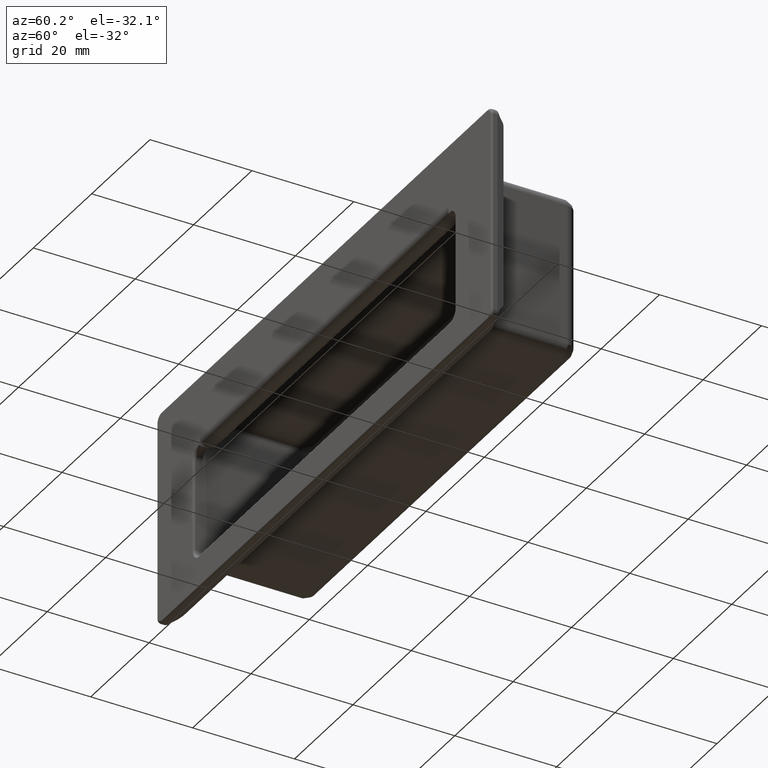
[diagram: clean part render]
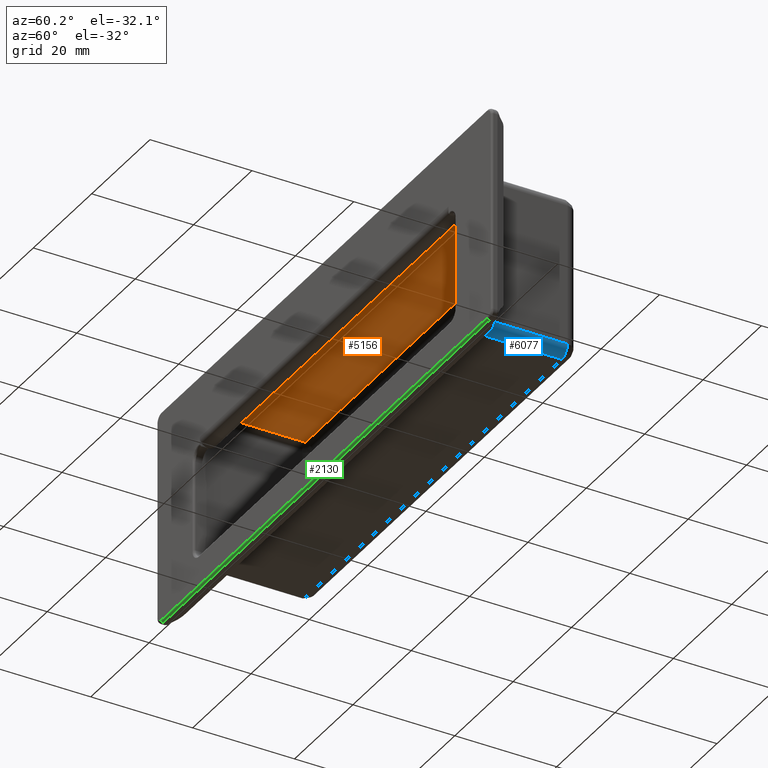
[diagram: same view with three faces highlighted in distinct colors, each labeled with its STEP entity id]
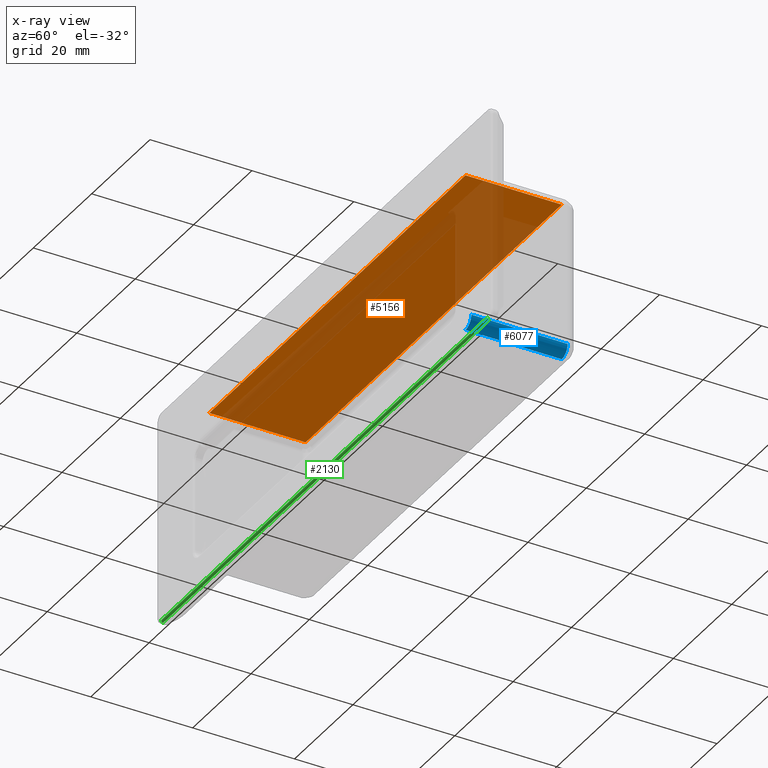
[diagram: x-ray of the same camera — body ghosted, the three highlighted faces saturated]
A machine part, auxiliary view with three faces highlighted in distinct colors.
The next image is the same camera in x-ray (body ghosted, the three faces saturated) — at least one of them is partly hidden behind the body in this view.
Their STEP definitions:

[orange] entity #5156 — the highlighted face is a freeform B-spline surface patch.
#4767=CARTESIAN_POINT('',(43.899999999999999,21.500000000000000,15.199999999999999));
#4768=VERTEX_POINT('',#4767);
#4870=CARTESIAN_POINT('',(43.899999999999999,2.600000000000035,15.199999999999999));
#4871=VERTEX_POINT('',#4870);
#4883=CARTESIAN_POINT('',(43.899999999999999,21.500000000000000,15.199999999999999));
#4884=CARTESIAN_POINT('',(43.899999999999999,2.600000000000035,15.199999999999999));
#4885=QUASI_UNIFORM_CURVE('',1,(#4883,#4884),.UNSPECIFIED.,.F.,.U.);
#4886=EDGE_CURVE('',#4768,#4871,#4885,.T.);
#4906=CARTESIAN_POINT('',(-43.899999999999999,21.500000000000000,15.199999999999999));
#4907=VERTEX_POINT('',#4906);
#4921=CARTESIAN_POINT('',(-43.899999999999999,21.500000000000000,15.199999999999999));
#4922=CARTESIAN_POINT('',(43.899999999999999,21.500000000000000,15.199999999999999));
#4923=QUASI_UNIFORM_CURVE('',1,(#4921,#4922),.UNSPECIFIED.,.F.,.U.);
#4924=EDGE_CURVE('',#4907,#4768,#4923,.T.);
#5064=CARTESIAN_POINT('',(-43.899999999999999,2.600000000000035,15.199999999999999));
#5065=VERTEX_POINT('',#5064);
#5066=CARTESIAN_POINT('',(-43.899999999999999,2.600000000000035,15.199999999999999));
#5067=CARTESIAN_POINT('',(-43.899999999999999,21.500000000000000,15.199999999999999));
#5068=QUASI_UNIFORM_CURVE('',1,(#5066,#5067),.UNSPECIFIED.,.F.,.U.);
#5069=EDGE_CURVE('',#5065,#4907,#5068,.T.);
#5141=CARTESIAN_POINT('',(48.285609829826562,1.655945036631903,15.199999999999999));
#5142=CARTESIAN_POINT('',(-48.285612184806077,1.655945036631903,15.199999999999999));
#5143=CARTESIAN_POINT('',(48.285609829826562,22.444055470305631,15.199999999999999));
#5144=CARTESIAN_POINT('',(-48.285612184806077,22.444055470305631,15.199999999999999));
#5145=B_SPLINE_SURFACE_WITH_KNOTS('',1,1,((#5141,#5143),(#5142,#5144)),.UNSPECIFIED.,.F.,.F.,.U.,(2,2),(2,2),(0.0,96.571222014632639),(0.0,20.788110433673729),.UNSPECIFIED.);
#5146=ORIENTED_EDGE('',*,*,#4886,.T.);
#5147=CARTESIAN_POINT('',(43.899999999999999,2.600000000000035,15.199999999999999));
#5148=CARTESIAN_POINT('',(-43.899999999999999,2.600000000000035,15.199999999999999));
#5149=QUASI_UNIFORM_CURVE('',1,(#5147,#5148),.UNSPECIFIED.,.F.,.U.);
#5150=EDGE_CURVE('',#4871,#5065,#5149,.T.);
#5151=ORIENTED_EDGE('',*,*,#5150,.T.);
#5152=ORIENTED_EDGE('',*,*,#5069,.T.);
#5153=ORIENTED_EDGE('',*,*,#4924,.T.);
#5154=EDGE_LOOP('',(#5146,#5151,#5152,#5153));
#5155=FACE_OUTER_BOUND('',#5154,.T.);
#5156=ADVANCED_FACE('',(#5155),#5145,.T.);

[blue] entity #6077 — the highlighted face is a freeform B-spline surface patch.
#5866=CARTESIAN_POINT('',(45.900000000000013,21.500000000000000,-13.900000000000199));
#5867=VERTEX_POINT('',#5866);
#5925=CARTESIAN_POINT('',(43.899999999999999,21.500000000000000,-15.900000000000000));
#5926=VERTEX_POINT('',#5925);
#6020=CARTESIAN_POINT('',(45.900000000000013,21.500000000000000,-13.900000000000199));
#6021=CARTESIAN_POINT('',(45.900005824462433,21.500000000000028,-14.030896201154960));
#6022=CARTESIAN_POINT('',(45.867801035606171,21.499999999999961,-14.358151051458410));
#6023=CARTESIAN_POINT('',(45.672948776878542,21.500000000000021,-14.903319300400881));
#6024=CARTESIAN_POINT('',(45.267382281176133,21.500000000000099,-15.409985743078350));
#6025=CARTESIAN_POINT('',(44.652435070400351,21.499999999999861,-15.799324634977051));
#6026=CARTESIAN_POINT('',(44.178218193051698,21.500000000000089,-15.900362043365220));
#6027=CARTESIAN_POINT('',(43.899999999999999,21.500000000000000,-15.900000000000000));
#6028=B_SPLINE_CURVE_WITH_KNOTS('',3,(#6020,#6021,#6022,#6023,#6024,#6025,#6026,#6027),.UNSPECIFIED.,.F.,.U.,(4,1,1,1,1,4),(0.000000245825137,0.392707809302964,0.981776154988288,1.718067132761556,2.307162978441625,3.141671488692327),.UNSPECIFIED.);
#6029=EDGE_CURVE('',#5867,#5926,#6028,.T.);
#6035=CARTESIAN_POINT('',(45.898096443163723,21.972500000000000,-13.812761225269529));
#6036=CARTESIAN_POINT('',(45.898096443163723,2.115687500000000,-13.812761225269529));
#6037=CARTESIAN_POINT('',(45.995868981871979,21.972499999999993,-16.052120528918270));
#6038=CARTESIAN_POINT('',(45.995868981871979,2.115687499999999,-16.052120528918270));
#6039=CARTESIAN_POINT('',(43.759883815912950,21.972500000000000,-15.895085826464033));
#6040=CARTESIAN_POINT('',(43.759883815912950,2.115687500000000,-15.895085826464033));
#6048=(BOUNDED_SURFACE()B_SPLINE_SURFACE(1,2,((#6035,#6037,#6039),(#6036,#6038,#6040)),.UNSPECIFIED.,.F.,.F.,.U.)B_SPLINE_SURFACE_WITH_KNOTS((2,2),(3,3),(0.0,19.856812500000000),(0.0,3.583485079683969),.UNSPECIFIED.)GEOMETRIC_REPRESENTATION_ITEM()RATIONAL_B_SPLINE_SURFACE(((1.0,0.664513898535122,0.996233561259061),(1.0,0.664513898535122,0.996233561259061)))REPRESENTATION_ITEM('')SURFACE());
#6049=CARTESIAN_POINT('',(45.900000000000013,2.600000000000000,-13.900000000000199));
#6050=VERTEX_POINT('',#6049);
#6051=CARTESIAN_POINT('',(45.900000000000013,2.600000000000000,-13.900000000000199));
#6052=CARTESIAN_POINT('',(45.900000000000013,21.500000000000000,-13.900000000000199));
#6053=QUASI_UNIFORM_CURVE('',1,(#6051,#6052),.UNSPECIFIED.,.F.,.U.);
#6054=EDGE_CURVE('',#6050,#5867,#6053,.T.);
#6055=ORIENTED_EDGE('',*,*,#6054,.F.);
#6056=CARTESIAN_POINT('',(43.899999999999999,2.600000000000000,-15.900000000000000));
#6057=VERTEX_POINT('',#6056);
#6058=CARTESIAN_POINT('',(45.900000000000013,2.600000000000000,-13.900000000000199));
#6059=CARTESIAN_POINT('',(45.900005821263967,2.600000000000005,-14.030896151063191));
#6060=CARTESIAN_POINT('',(45.867801094656123,2.599999999999994,-14.358151200462791));
#6061=CARTESIAN_POINT('',(45.672948459477752,2.600000000000001,-14.903319210989510));
#6062=CARTESIAN_POINT('',(45.267382971899103,2.600000000000010,-15.409985668935260));
#6063=CARTESIAN_POINT('',(44.652434442853043,2.599999999999985,-15.799324992808600));
#6064=CARTESIAN_POINT('',(44.178218421004161,2.600000000000009,-15.900361870297271));
#6065=CARTESIAN_POINT('',(43.899999999999999,2.600000000000000,-15.900000000000000));
#6066=B_SPLINE_CURVE_WITH_KNOTS('',3,(#6058,#6059,#6060,#6061,#6062,#6063,#6064,#6065),.UNSPECIFIED.,.F.,.U.,(4,1,1,1,1,4),(0.000000245825137,0.392707809302964,0.981776154988288,1.718067132761556,2.307162978441625,3.141671488692327),.UNSPECIFIED.);
#6067=EDGE_CURVE('',#6050,#6057,#6066,.T.);
#6068=ORIENTED_EDGE('',*,*,#6067,.T.);
#6069=CARTESIAN_POINT('',(43.899999999999999,21.500000000000000,-15.900000000000000));
#6070=CARTESIAN_POINT('',(43.899999999999999,2.600000000000000,-15.900000000000000));
#6071=QUASI_UNIFORM_CURVE('',1,(#6069,#6070),.UNSPECIFIED.,.F.,.U.);
#6072=EDGE_CURVE('',#5926,#6057,#6071,.T.);
#6073=ORIENTED_EDGE('',*,*,#6072,.F.);
#6074=ORIENTED_EDGE('',*,*,#6029,.F.);
#6075=EDGE_LOOP('',(#6055,#6068,#6073,#6074));
#6076=FACE_OUTER_BOUND('',#6075,.T.);
#6077=ADVANCED_FACE('',(#6076),#6048,.T.);

[green] entity #2130 — the highlighted face is a freeform B-spline surface patch.
#1812=CARTESIAN_POINT('',(55.899999999999999,0.399999999999956,-21.149999999999999));
#1813=VERTEX_POINT('',#1812);
#1840=CARTESIAN_POINT('',(-55.899999999999999,0.399999999999956,-21.149999999999999));
#1841=VERTEX_POINT('',#1840);
#1842=CARTESIAN_POINT('',(55.899999999999999,0.399999999999956,-21.149999999999999));
#1843=CARTESIAN_POINT('',(-55.899999999999999,0.399999999999956,-21.149999999999999));
#1844=QUASI_UNIFORM_CURVE('',1,(#1842,#1843),.UNSPECIFIED.,.F.,.U.);
#1845=EDGE_CURVE('',#1813,#1841,#1844,.T.);
#2022=CARTESIAN_POINT('',(55.899999999999999,0.0,-20.750000000000000));
#2023=VERTEX_POINT('',#2022);
#2024=CARTESIAN_POINT('',(55.899999999999999,0.0,-20.750000000000000));
#2025=CARTESIAN_POINT('',(55.899999999999963,-0.000057133413313,-20.802372543310629));
#2026=CARTESIAN_POINT('',(55.900000000000077,0.019562358924893,-20.900505218138090));
#2027=CARTESIAN_POINT('',(55.899999999999991,0.097731121442376,-21.023976251373931));
#2028=CARTESIAN_POINT('',(55.900000000000027,0.223406299280754,-21.122063203053759));
#2029=CARTESIAN_POINT('',(55.899999999999928,0.334523976205165,-21.150128124507749));
#2030=CARTESIAN_POINT('',(55.899999999999999,0.399999999999956,-21.149999999999999));
#2031=B_SPLINE_CURVE_WITH_KNOTS('',3,(#2024,#2025,#2026,#2027,#2028,#2029,#2030),.UNSPECIFIED.,.F.,.U.,(4,1,1,1,4),(0.000000544509841,0.157095796755852,0.294591045831648,0.432007162691960,0.628381553494101),.UNSPECIFIED.);
#2032=EDGE_CURVE('',#2023,#1813,#2031,.T.);
#2095=CARTESIAN_POINT('',(58.695000000000007,0.000137070009778,-20.739529220676811));
#2096=CARTESIAN_POINT('',(-58.764875000000011,0.000137070009778,-20.739529220676811));
#2097=CARTESIAN_POINT('',(58.695000000000000,-0.011396904066548,-21.179993920221843));
#2098=CARTESIAN_POINT('',(-58.764875000000011,-0.011396904066548,-21.179993920221843));
#2099=CARTESIAN_POINT('',(58.695000000000022,0.428128030250351,-21.149009791752331));
#2100=CARTESIAN_POINT('',(-58.764875000000018,0.428128030250351,-21.149009791752331));
#2108=(BOUNDED_SURFACE()B_SPLINE_SURFACE(1,2,((#2095,#2097,#2099),(#2096,#2098,#2100)),.UNSPECIFIED.,.F.,.F.,.U.)B_SPLINE_SURFACE_WITH_KNOTS((2,2),(3,3),(0.0,117.459875000000000),(0.0,0.994518632334191),.UNSPECIFIED.)GEOMETRIC_REPRESENTATION_ITEM()RATIONAL_B_SPLINE_SURFACE(((1.0,0.670944223154768,0.996392648609106),(1.0,0.670944223154768,0.996392648609106)))REPRESENTATION_ITEM('')SURFACE());
#2109=CARTESIAN_POINT('',(-55.899999999999999,0.0,-20.750000000000000));
#2110=VERTEX_POINT('',#2109);
#2111=CARTESIAN_POINT('',(-55.899999999999999,0.0,-20.750000000000000));
#2112=CARTESIAN_POINT('',(-55.899999999999963,-0.000057133413313,-20.802372543310629));
#2113=CARTESIAN_POINT('',(-55.900000000000077,0.019562358924893,-20.900505218138090));
#2114=CARTESIAN_POINT('',(-55.899999999999991,0.097731121442376,-21.023976251373931));
#2115=CARTESIAN_POINT('',(-55.900000000000027,0.223406299280754,-21.122063203053759));
#2116=CARTESIAN_POINT('',(-55.899999999999928,0.334523976205165,-21.150128124507749));
#2117=CARTESIAN_POINT('',(-55.899999999999999,0.399999999999956,-21.149999999999999));
#2118=B_SPLINE_CURVE_WITH_KNOTS('',3,(#2111,#2112,#2113,#2114,#2115,#2116,#2117),.UNSPECIFIED.,.F.,.U.,(4,1,1,1,4),(0.000000544509841,0.157095796755852,0.294591045831648,0.432007162691960,0.628381553494101),.UNSPECIFIED.);
#2119=EDGE_CURVE('',#2110,#1841,#2118,.T.);
#2120=ORIENTED_EDGE('',*,*,#2119,.T.);
#2121=ORIENTED_EDGE('',*,*,#1845,.F.);
#2122=ORIENTED_EDGE('',*,*,#2032,.F.);
#2123=CARTESIAN_POINT('',(-55.899999999999999,0.0,-20.750000000000000));
#2124=CARTESIAN_POINT('',(55.899999999999999,0.0,-20.750000000000000));
#2125=QUASI_UNIFORM_CURVE('',1,(#2123,#2124),.UNSPECIFIED.,.F.,.U.);
#2126=EDGE_CURVE('',#2110,#2023,#2125,.T.);
#2127=ORIENTED_EDGE('',*,*,#2126,.F.);
#2128=EDGE_LOOP('',(#2120,#2121,#2122,#2127));
#2129=FACE_OUTER_BOUND('',#2128,.T.);
#2130=ADVANCED_FACE('',(#2129),#2108,.T.);